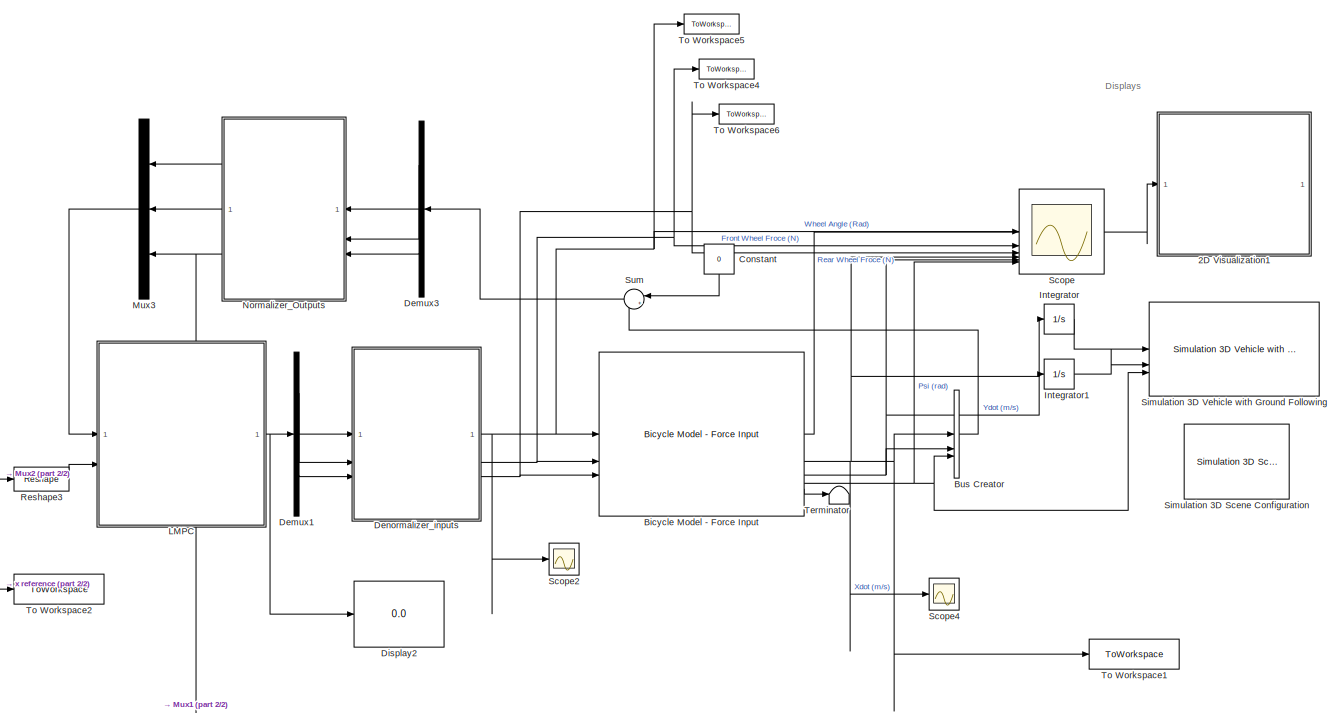
[diagram: root canvas - part 1/2, right side, full height]
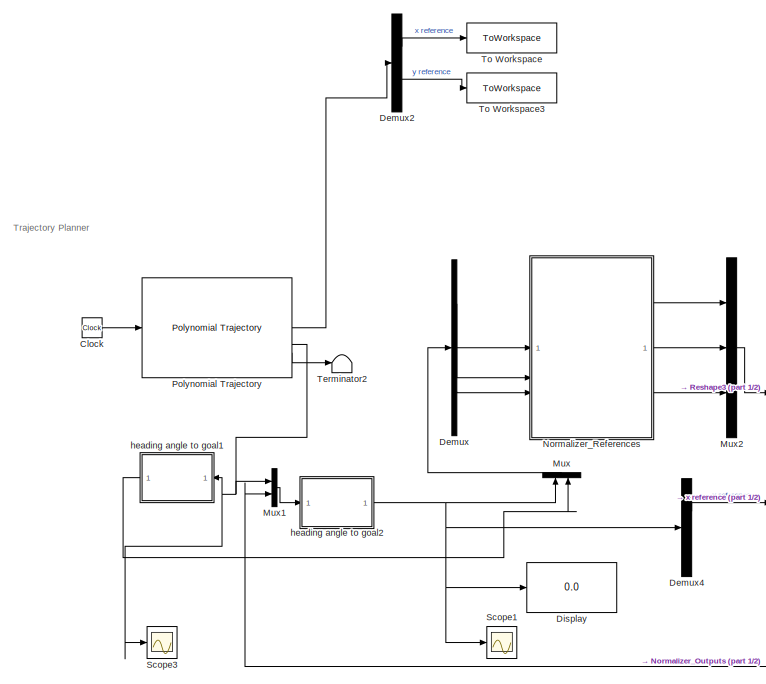
[diagram: root canvas - part 2/2, left side, full height]
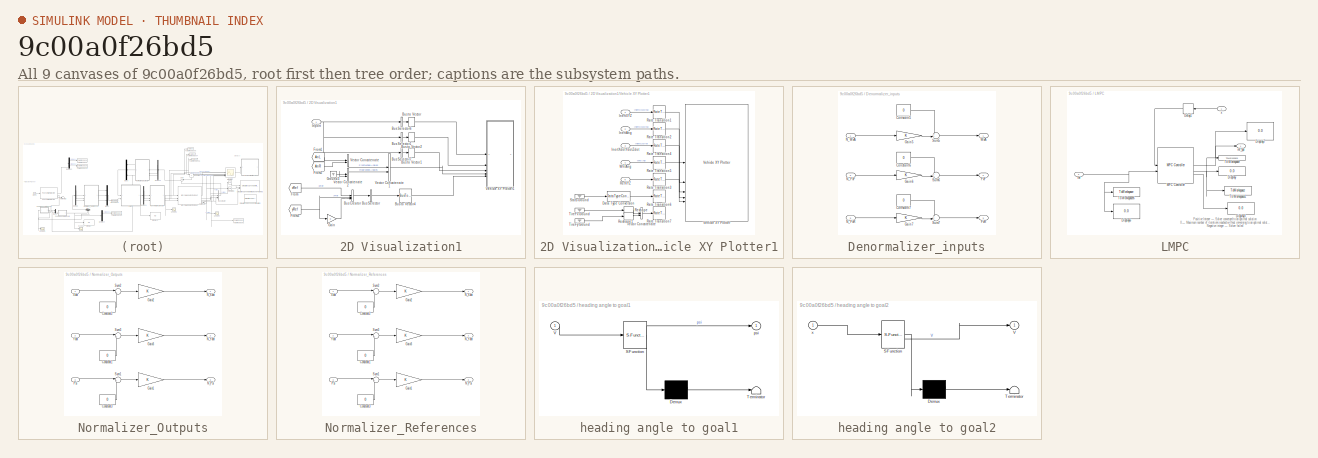
[diagram: thumbnail index - all 9 canvases of the model, root first then tree order]
MODEL slx_9c00a0f26bd5
KIND model
CONFIG AbsTol = auto
CONFIG EnableMultiTasking = off
CONFIG FixedStep = 0.01
CONFIG MaxStep = auto
CONFIG MinStep = auto
CONFIG RelTol = 1e-3
CONFIG SampleTimeConstraint = Unconstrained
CONFIG SolverName = FixedStepAuto
CONFIG StartTime = 0.0
CONFIG StopTime = 20
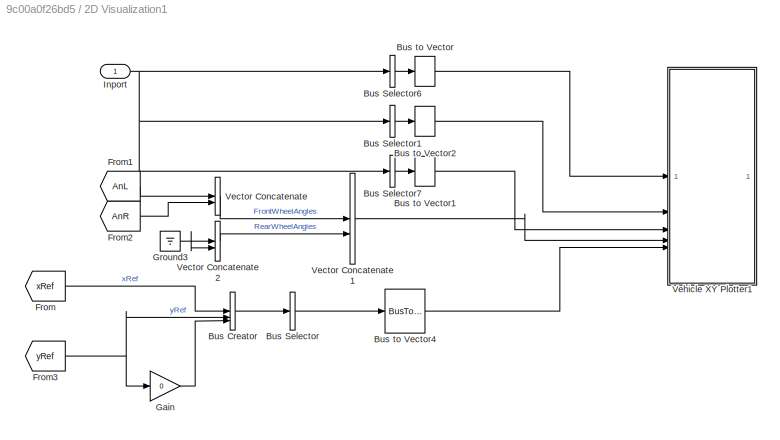
BLOCK [SubSystem] 2D Visualization1
BLOCK [BusCreator] 2D Visualization1/Bus Creator
  DisplayOption = bar
  InheritFromInputs = on
  Inputs = 3
BLOCK [BusSelector] 2D Visualization1/Bus Selector
  OutputAsBus = on
  OutputSignals = xRef,yRef,signal3
BLOCK [BusSelector] 2D Visualization1/Bus Selector1
  OutputAsBus = on
  OutputSignals = InertFrm.Cg.Ang.phi,InertFrm.Cg.Ang.theta,InertFrm.Cg.Ang.psi
BLOCK [BusSelector] 2D Visualization1/Bus Selector6
  OutputAsBus = on
  OutputSignals = InertFrm.Geom.Disp.X,InertFrm.Geom.Disp.Y,InertFrm.Geom.Disp.Z
BLOCK [BusSelector] 2D Visualization1/Bus Selector7
  OutputAsBus = on
  OutputSignals = InertFrm.Geom.Vel.Xdot,InertFrm.Geom.Vel.Ydot,InertFrm.Geom.Vel.Zdot
BLOCK [BusToVector] 2D Visualization1/Bus to Vector
BLOCK [BusToVector] 2D Visualization1/Bus to Vector1
BLOCK [BusToVector] 2D Visualization1/Bus to Vector2
BLOCK [BusToVector] 2D Visualization1/Bus to Vector4
BLOCK [From] 2D Visualization1/From
  GotoTag = xRef
BLOCK [From] 2D Visualization1/From1
  GotoTag = AnL
BLOCK [From] 2D Visualization1/From2
  GotoTag = AnR
BLOCK [From] 2D Visualization1/From3
  GotoTag = yRef
BLOCK [Gain] 2D Visualization1/Gain
  Gain = 0
BLOCK [Ground] 2D Visualization1/Ground3
BLOCK [Inport] 2D Visualization1/Inport
BLOCK [Concatenate] 2D Visualization1/Vector Concatenate
BLOCK [Concatenate] 2D Visualization1/Vector Concatenate1
BLOCK [Concatenate] 2D Visualization1/Vector Concatenate2
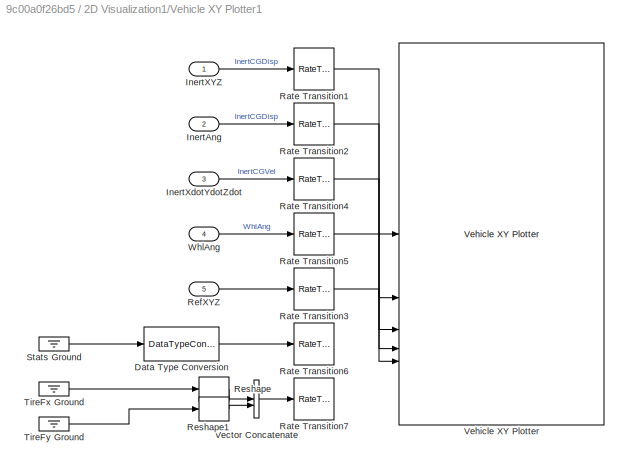
BLOCK [SubSystem] 2D Visualization1/Vehicle XY Plotter1
BLOCK [DataTypeConversion] 2D Visualization1/Vehicle XY Plotter1/Data Type Conversion
  OutDataTypeStr = double
  RndMeth = Floor
  SaturateOnIntegerOverflow = off
BLOCK [Inport] 2D Visualization1/Vehicle XY Plotter1/InertAng
  Port = 2
BLOCK [Inport] 2D Visualization1/Vehicle XY Plotter1/InertXYZ
BLOCK [Inport] 2D Visualization1/Vehicle XY Plotter1/InertXdotYdotZdot
  Port = 3
BLOCK [RateTransition] 2D Visualization1/Vehicle XY Plotter1/Rate Transition1
  Deterministic = off
  OutPortSampleTime = pltDT
BLOCK [RateTransition] 2D Visualization1/Vehicle XY Plotter1/Rate Transition2
  Deterministic = off
  OutPortSampleTime = pltDT
BLOCK [RateTransition] 2D Visualization1/Vehicle XY Plotter1/Rate Transition3
  Deterministic = off
  OutPortSampleTime = pltDT
BLOCK [RateTransition] 2D Visualization1/Vehicle XY Plotter1/Rate Transition4
  Deterministic = off
  OutPortSampleTime = pltDT
BLOCK [RateTransition] 2D Visualization1/Vehicle XY Plotter1/Rate Transition5
  Deterministic = off
  OutPortSampleTime = pltDT
BLOCK [RateTransition] 2D Visualization1/Vehicle XY Plotter1/Rate Transition6
  Deterministic = off
  OutPortSampleTime = pltDT
BLOCK [RateTransition] 2D Visualization1/Vehicle XY Plotter1/Rate Transition7
  Deterministic = off
  OutPortSampleTime = pltDT
BLOCK [Inport] 2D Visualization1/Vehicle XY Plotter1/RefXYZ
  Port = 5
BLOCK [Reshape] 2D Visualization1/Vehicle XY Plotter1/Reshape
  OutputDimensionality = Row vector (2-D)
BLOCK [Reshape] 2D Visualization1/Vehicle XY Plotter1/Reshape1
  OutputDimensionality = Row vector (2-D)
BLOCK [Ground] 2D Visualization1/Vehicle XY Plotter1/Stats Ground
BLOCK [Ground] 2D Visualization1/Vehicle XY Plotter1/TireFx Ground
BLOCK [Ground] 2D Visualization1/Vehicle XY Plotter1/TireFy Ground
BLOCK [Concatenate] 2D Visualization1/Vehicle XY Plotter1/Vector Concatenate
  Mode = Multidimensional array
BLOCK [Reference] 2D Visualization1/Vehicle XY Plotter1/Vehicle XY Plotter  REF=vehdynlibviscommon/Vehicle XY Plotter
  SourceBlock = vehdynlibviscommon/Vehicle XY Plotter
  SourceType = Vehicle XY Plotter
BLOCK [Inport] 2D Visualization1/Vehicle XY Plotter1/WhlAng
  Port = 4
BLOCK [Reference] Bicycle Model - Force Input  REF=autolibshared/Bicycle Model - Force Input
  LibrarySourceBlock = drivingscenarioandsensors/Bicycle Model - Force Input
  SourceBlock = autolibshared/Bicycle Model - Force Input
  SourceType = Vehicle Body 3DOF Lateral
BLOCK [BusCreator] Bus Creator
  DisplayOption = bar
  InheritFromInputs = on
  Inputs = 3
BLOCK [Clock] Clock
  Decimation = 19
BLOCK [Constant] Constant
  NameLocation = left
  Value = 0
BLOCK [Demux] Demux
  Outputs = 3
BLOCK [Demux] Demux1
  Outputs = 3
BLOCK [Demux] Demux2
  Outputs = 2
BLOCK [Demux] Demux3
  NameLocation = top
  Outputs = 3
BLOCK [Demux] Demux4
  Outputs = 2
BLOCK [SubSystem] Denormalizer_inputs
BLOCK [Constant] Denormalizer_inputs/Constant5
  Value = 0
BLOCK [Constant] Denormalizer_inputs/Constant6
  Value = 0
BLOCK [Constant] Denormalizer_inputs/Constant7
  Value = 0
BLOCK [Outport] Denormalizer_inputs/FxF
  Port = 2
BLOCK [Outport] Denormalizer_inputs/FxR
  Port = 3
BLOCK [Gain] Denormalizer_inputs/Gain5
BLOCK [Gain] Denormalizer_inputs/Gain6
BLOCK [Gain] Denormalizer_inputs/Gain7
BLOCK [Inport] Denormalizer_inputs/N_FxF
  Port = 2
BLOCK [Inport] Denormalizer_inputs/N_FxR
  Port = 3
BLOCK [Inport] Denormalizer_inputs/N_WxA
BLOCK [Sum] Denormalizer_inputs/Sum5
  Inputs = ++|
BLOCK [Sum] Denormalizer_inputs/Sum6
  Inputs = ++|
BLOCK [Sum] Denormalizer_inputs/Sum7
  Inputs = ++|
BLOCK [Outport] Denormalizer_inputs/WxA
BLOCK [Display] Display
  Decimation = 1
BLOCK [Display] Display2
  Decimation = 1
BLOCK [Integrator] Integrator
BLOCK [Integrator] Integrator1
BLOCK [SubSystem] LMPC
BLOCK [Delay] LMPC/Delay1
  DelayLength = 1
  InitialCondition = 0
  InputPortMap = u0
  NameLocation = top
BLOCK [Display] LMPC/Display
  Decimation = 1
BLOCK [Display] LMPC/Display3
  Decimation = 1
BLOCK [Display] LMPC/Display6
  Decimation = 1
BLOCK [Display] LMPC/Display7
  Decimation = 1
BLOCK [Reference] LMPC/MPC Controller  REF=mpclib/MPC Controller  (lib defined in mdl_ae329e0e0455)
  SCDEnableBlockLinearizationSpecification = on
  SourceBlock = mpclib/MPC Controller
  SourceType = MPC
BLOCK [ToWorkspace] LMPC/To Workspace
  FixptAsFi = on
  MaxDataPoints = inf
  SampleTime = -1
  SaveFormat = Timeseries
  VariableName = mpcout_cost
BLOCK [ToWorkspace] LMPC/To Workspace1
  FixptAsFi = on
  MaxDataPoints = inf
  SampleTime = -1
  SaveFormat = Timeseries
  VariableName = cost
BLOCK [ToWorkspace] LMPC/To Workspace6
  FixptAsFi = on
  MaxDataPoints = inf
  SampleTime = -1
  SaveFormat = Timeseries
  VariableName = ref
BLOCK [Outport] LMPC/mf_opt
BLOCK [Inport] LMPC/ref
  Port = 2
BLOCK [Inport] LMPC/x
BLOCK [Mux] Mux
  DisplayOption = bar
  Inputs = 2
  NameLocation = right
BLOCK [Mux] Mux1
  DisplayOption = bar
  Inputs = 2
BLOCK [Mux] Mux2
  DisplayOption = bar
  Inputs = 3
BLOCK [Mux] Mux3
  DisplayOption = bar
  Inputs = 3
  NameLocation = top
BLOCK [SubSystem] Normalizer_Outputs
  NameLocation = top
BLOCK [Constant] Normalizer_Outputs/Constant1
  Value = 0
BLOCK [Constant] Normalizer_Outputs/Constant2
  Value = 0
BLOCK [Constant] Normalizer_Outputs/Constant3
  Value = 0
BLOCK [Gain] Normalizer_Outputs/Gain1
BLOCK [Gain] Normalizer_Outputs/Gain2
BLOCK [Gain] Normalizer_Outputs/Gain3
BLOCK [Outport] Normalizer_Outputs/N_Psi
  Port = 3
BLOCK [Outport] Normalizer_Outputs/N_Xdot
BLOCK [Outport] Normalizer_Outputs/N_Ydot
  Port = 2
BLOCK [Inport] Normalizer_Outputs/Psi
  Port = 3
BLOCK [Sum] Normalizer_Outputs/Sum1
  Inputs = |+-
BLOCK [Sum] Normalizer_Outputs/Sum2
  Inputs = |+-
BLOCK [Sum] Normalizer_Outputs/Sum3
  Inputs = |+-
BLOCK [Inport] Normalizer_Outputs/Xdot
BLOCK [Inport] Normalizer_Outputs/Ydot
  Port = 2
BLOCK [SubSystem] Normalizer_References
BLOCK [Constant] Normalizer_References/Constant1
  Value = 0
BLOCK [Constant] Normalizer_References/Constant2
  Value = 0
BLOCK [Constant] Normalizer_References/Constant3
  Value = 0
BLOCK [Gain] Normalizer_References/Gain1
BLOCK [Gain] Normalizer_References/Gain2
BLOCK [Gain] Normalizer_References/Gain3
BLOCK [Outport] Normalizer_References/N_Psi
  Port = 3
BLOCK [Outport] Normalizer_References/N_Xdot
BLOCK [Outport] Normalizer_References/N_Ydot
  Port = 2
BLOCK [Inport] Normalizer_References/Psi
  Port = 3
BLOCK [Sum] Normalizer_References/Sum1
  Inputs = |+-
BLOCK [Sum] Normalizer_References/Sum2
  Inputs = |+-
BLOCK [Sum] Normalizer_References/Sum3
  Inputs = |+-
BLOCK [Inport] Normalizer_References/Xdot
BLOCK [Inport] Normalizer_References/Ydot
  Port = 2
BLOCK [Reference] Polynomial Trajectory  REF=robotcorelib/Polynomial Trajectory
  SourceBlock = robotcorelib/Polynomial Trajectory
  SourceType = robotics.slcore.internal.block.PolyTrajSys
BLOCK [Reshape] Reshape3
  OutputDimensionality = Customize
  OutputDimensions = [1,3]
BLOCK [Scope] Scope
  Floating = off
  NumInputPorts = 6
  ScopeSpecificationString = Simulink.scopes.TimeScopeBlockCfg('CurrentConfiguration', extmgr.ConfigurationSet(extmgr.Configuration('Core','General UI',true,'FigureColor',[1 1 1],'DisplayFullSourceName',true),extmgr.Configuration('Core','Source UI',true),extmgr.Configuration('Sources','WiredSimulink',true),extmgr.Configuration('Visuals','Time Domain',true,'SerializedDisplays',{struct('MinYLimReal','-0.00053','MaxYLimReal','0....<+5860ch>
BLOCK [Scope] Scope1
  Floating = off
  NumInputPorts = 1
  ScopeSpecificationString = Simulink.scopes.TimeScopeBlockCfg('CurrentConfiguration', extmgr.ConfigurationSet(extmgr.Configuration('Core','General UI',true),extmgr.Configuration('Core','Source UI',true),extmgr.Configuration('Sources','WiredSimulink',true,'DataLoggingVariableName','ScopeData1'),extmgr.Configuration('Visuals','Time Domain',true,'SerializedDisplays',{struct('MinYLimReal','-0.09375','MaxYLimReal','0.84375','YLab...<+1465ch>
BLOCK [Scope] Scope2
  Floating = off
  NumInputPorts = 1
  ScopeSpecificationString = Simulink.scopes.TimeScopeBlockCfg('CurrentConfiguration', extmgr.ConfigurationSet(extmgr.Configuration('Core','General UI',true),extmgr.Configuration('Core','Source UI',true),extmgr.Configuration('Sources','WiredSimulink',true,'DataLoggingVariableName','ScopeData2'),extmgr.Configuration('Visuals','Time Domain',true,'SerializedDisplays',{struct('MinYLimReal','-1.00000','MaxYLimReal','1.00000','YLab...<+1431ch>
BLOCK [Scope] Scope3
  Floating = off
  NumInputPorts = 1
  ScopeSpecificationString = Simulink.scopes.TimeScopeBlockCfg('CurrentConfiguration', extmgr.ConfigurationSet(extmgr.Configuration('Core','General UI',true),extmgr.Configuration('Core','Source UI',true),extmgr.Configuration('Sources','WiredSimulink',true,'DataLoggingVariableName','ScopeData1'),extmgr.Configuration('Visuals','Time Domain',true,'SerializedDisplays',{struct('MinYLimReal','-0.09375','MaxYLimReal','0.84375','YLab...<+1467ch>
BLOCK [Scope] Scope4
  Floating = off
  NumInputPorts = 1
  ScopeSpecificationString = Simulink.scopes.TimeScopeBlockCfg('CurrentConfiguration', extmgr.ConfigurationSet(extmgr.Configuration('Core','General UI',true),extmgr.Configuration('Core','Source UI',true),extmgr.Configuration('Sources','WiredSimulink',true,'DataLoggingVariableName','ScopeData2'),extmgr.Configuration('Visuals','Time Domain',true,'SerializedDisplays',{struct('MinYLimReal','-0.125','MaxYLimReal','0.58548','YLabel...<+1420ch>
BLOCK [Reference] Simulation 3D Scene Configuration  REF=sim3dlib/Simulation 3D Scene Configuration
  Priority = 0
  SourceBlock = sim3dlib/Simulation 3D Scene Configuration
  SourceType = Simulation 3D Scene Configuration
BLOCK [Reference] Simulation 3D Vehicle with Ground Following  REF=sim3dautolib/Simulation 3D Vehicle with Ground Following VDBS
  LibrarySourceBlock = vehdynlibsim3d/Simulation 3D Vehicle with Ground Following
  Priority = -1
  SourceBlock = sim3dautolib/Simulation 3D Vehicle with Ground Following VDBS
  SourceType = Simulation 3D Vehicle with Ground Following
BLOCK [Sum] Sum
  Inputs = |++
  NameLocation = top
BLOCK [Terminator] Terminator
BLOCK [Terminator] Terminator2
BLOCK [ToWorkspace] To Workspace
  FixptAsFi = on
  MaxDataPoints = inf
  SampleTime = -1
  Save2DSignal = 2-D array (concatenate along first dimension)
  VariableName = Xref
BLOCK [ToWorkspace] To Workspace1
  FixptAsFi = on
  MaxDataPoints = inf
  SampleTime = -1
  SaveFormat = Timeseries
  VariableName = Xdot2
BLOCK [ToWorkspace] To Workspace2
  FixptAsFi = on
  MaxDataPoints = inf
  SampleTime = -1
  SaveFormat = Timeseries
  VariableName = Xdot
BLOCK [ToWorkspace] To Workspace3
  FixptAsFi = on
  MaxDataPoints = inf
  SampleTime = -1
  Save2DSignal = 2-D array (concatenate along first dimension)
  VariableName = Yref
BLOCK [ToWorkspace] To Workspace4
  FixptAsFi = on
  MaxDataPoints = inf
  SampleTime = 0.1
  SaveFormat = Timeseries
  VariableName = FxF
BLOCK [ToWorkspace] To Workspace5
  FixptAsFi = on
  MaxDataPoints = inf
  SampleTime = 0.1
  SaveFormat = Timeseries
  VariableName = WhlAngF
BLOCK [ToWorkspace] To Workspace6
  FixptAsFi = on
  MaxDataPoints = inf
  SampleTime = 0.1
  SaveFormat = Timeseries
  VariableName = FxR
BLOCK [SubSystem] heading angle to goal1
  ErrorFcn = Stateflow.Translate.translate
  NameLocation = top
  PermitHierarchicalResolution = ExplicitOnly
  SFBlockType = MATLAB Function
  TreatAsAtomicUnit = on
BLOCK [Demux] heading angle to goal1/ Demux 
  Outputs = 1
BLOCK [S-Function] heading angle to goal1/ SFunction 
  EnableBusSupport = on
  FunctionName = sf_sfun
  PortCounts = [1 2]
  SFcnIsStateOwnerBlock = off
  SFunctionDeploymentMode = off
  Tag = Stateflow S-Function 2
BLOCK [Terminator] heading angle to goal1/ Terminator 
BLOCK [Inport] heading angle to goal1/V
BLOCK [Outport] heading angle to goal1/psi
BLOCK [SubSystem] heading angle to goal2
  ErrorFcn = Stateflow.Translate.translate
  PermitHierarchicalResolution = ExplicitOnly
  SFBlockType = MATLAB Function
  TreatAsAtomicUnit = on
BLOCK [Demux] heading angle to goal2/ Demux 
  Outputs = 1
BLOCK [S-Function] heading angle to goal2/ SFunction 
  EnableBusSupport = on
  FunctionName = sf_sfun
  PortCounts = [1 2]
  SFcnIsStateOwnerBlock = off
  SFunctionDeploymentMode = off
  Tag = Stateflow S-Function 3
BLOCK [Terminator] heading angle to goal2/ Terminator 
BLOCK [Outport] heading angle to goal2/V
BLOCK [Inport] heading angle to goal2/x
ANNOTATION (root): Displays
ANNOTATION (root): Trajectory Planner
ANNOTATION LMPC: Positive Integer — Solver converged to an optimal solution 0 — Maximum number of iterations reached without converging to an optimal solution Negative integer — Solver failed
LINE 2D Visualization1/Bus Creator:1 -> 2D Visualization1/Bus Selector:1
LINE 2D Visualization1/Bus Selector1:1 -> 2D Visualization1/Bus to Vector2:1
LINE 2D Visualization1/Bus Selector6:1 -> 2D Visualization1/Bus to Vector:1
LINE 2D Visualization1/Bus Selector7:1 -> 2D Visualization1/Bus to Vector1:1
LINE 2D Visualization1/Bus Selector:1 -> 2D Visualization1/Bus to Vector4:1
LINE 2D Visualization1/Bus to Vector1:1 -> 2D Visualization1/Vehicle XY Plotter1:3
LINE 2D Visualization1/Bus to Vector2:1 -> 2D Visualization1/Vehicle XY Plotter1:2
LINE 2D Visualization1/Bus to Vector4:1 -> 2D Visualization1/Vehicle XY Plotter1:5
LINE 2D Visualization1/Bus to Vector:1 -> 2D Visualization1/Vehicle XY Plotter1:1
LINE 2D Visualization1/From1:1 -> 2D Visualization1/Vector Concatenate:1
LINE 2D Visualization1/From2:1 -> 2D Visualization1/Vector Concatenate:2
NET 2D Visualization1/From3:1 -> 2D Visualization1/Bus Creator:2, 2D Visualization1/Gain:1
LINE 2D Visualization1/From:1 -> 2D Visualization1/Bus Creator:1
LINE 2D Visualization1/Gain:1 -> 2D Visualization1/Bus Creator:3
NET 2D Visualization1/Ground3:1 -> 2D Visualization1/Vector Concatenate2:1, 2D Visualization1/Vector Concatenate2:2
NET 2D Visualization1/Inport:1 -> 2D Visualization1/Bus Selector1:1, 2D Visualization1/Bus Selector6:1, 2D Visualization1/Bus Selector7:1
LINE 2D Visualization1/Vector Concatenate1:1 -> 2D Visualization1/Vehicle XY Plotter1:4
LINE 2D Visualization1/Vector Concatenate2:1 -> 2D Visualization1/Vector Concatenate1:2
LINE 2D Visualization1/Vector Concatenate:1 -> 2D Visualization1/Vector Concatenate1:1
LINE 2D Visualization1/Vehicle XY Plotter1/Data Type Conversion:1 -> 2D Visualization1/Vehicle XY Plotter1/Rate Transition6:1
LINE 2D Visualization1/Vehicle XY Plotter1/InertAng:1 -> 2D Visualization1/Vehicle XY Plotter1/Rate Transition2:1
LINE 2D Visualization1/Vehicle XY Plotter1/InertXYZ:1 -> 2D Visualization1/Vehicle XY Plotter1/Rate Transition1:1
LINE 2D Visualization1/Vehicle XY Plotter1/InertXdotYdotZdot:1 -> 2D Visualization1/Vehicle XY Plotter1/Rate Transition4:1
LINE 2D Visualization1/Vehicle XY Plotter1/Rate Transition1:1 -> 2D Visualization1/Vehicle XY Plotter1/Vehicle XY Plotter:1
LINE 2D Visualization1/Vehicle XY Plotter1/Rate Transition2:1 -> 2D Visualization1/Vehicle XY Plotter1/Vehicle XY Plotter:2
LINE 2D Visualization1/Vehicle XY Plotter1/Rate Transition3:1 -> 2D Visualization1/Vehicle XY Plotter1/Vehicle XY Plotter:5
LINE 2D Visualization1/Vehicle XY Plotter1/Rate Transition4:1 -> 2D Visualization1/Vehicle XY Plotter1/Vehicle XY Plotter:3
LINE 2D Visualization1/Vehicle XY Plotter1/Rate Transition5:1 -> 2D Visualization1/Vehicle XY Plotter1/Vehicle XY Plotter:4
LINE 2D Visualization1/Vehicle XY Plotter1/RefXYZ:1 -> 2D Visualization1/Vehicle XY Plotter1/Rate Transition3:1
LINE 2D Visualization1/Vehicle XY Plotter1/Reshape1:1 -> 2D Visualization1/Vehicle XY Plotter1/Vector Concatenate:2
LINE 2D Visualization1/Vehicle XY Plotter1/Reshape:1 -> 2D Visualization1/Vehicle XY Plotter1/Vector Concatenate:1
LINE 2D Visualization1/Vehicle XY Plotter1/Stats Ground:1 -> 2D Visualization1/Vehicle XY Plotter1/Data Type Conversion:1
LINE 2D Visualization1/Vehicle XY Plotter1/TireFx Ground:1 -> 2D Visualization1/Vehicle XY Plotter1/Reshape:1
LINE 2D Visualization1/Vehicle XY Plotter1/TireFy Ground:1 -> 2D Visualization1/Vehicle XY Plotter1/Reshape1:1
LINE 2D Visualization1/Vehicle XY Plotter1/Vector Concatenate:1 -> 2D Visualization1/Vehicle XY Plotter1/Rate Transition7:1
LINE 2D Visualization1/Vehicle XY Plotter1/WhlAng:1 -> 2D Visualization1/Vehicle XY Plotter1/Rate Transition5:1
LINE Bicycle Model - Force Input:1 -> 2D Visualization1:1
NET Bicycle Model - Force Input:2 -> Bus Creator:1, Integrator:1, Scope4:1, Scope:4, To Workspace1:1
NET Bicycle Model - Force Input:3 -> Bus Creator:2, Integrator1:1, Scope:5
NET Bicycle Model - Force Input:4 -> Bus Creator:3, Scope:6, Simulation 3D Vehicle with Ground Following:3
LINE Bicycle Model - Force Input:5 -> Terminator:1
LINE Bus Creator:1 -> Sum:2
LINE Clock:1 -> Polynomial Trajectory:1
LINE Constant:1 -> Sum:1
LINE Demux1:1 -> Denormalizer_inputs:1
LINE Demux1:2 -> Denormalizer_inputs:2
LINE Demux1:3 -> Denormalizer_inputs:3
LINE Demux2:1 -> To Workspace:1
LINE Demux2:2 -> To Workspace3:1
LINE Demux3:1 -> Normalizer_Outputs:1
LINE Demux3:2 -> Normalizer_Outputs:2
LINE Demux3:3 -> Normalizer_Outputs:3
LINE Demux4:1 -> To Workspace2:1
LINE Demux:1 -> Normalizer_References:1
LINE Demux:2 -> Normalizer_References:2
LINE Demux:3 -> Normalizer_References:3
LINE Denormalizer_inputs/Constant5:1 -> Denormalizer_inputs/Sum5:1
LINE Denormalizer_inputs/Constant6:1 -> Denormalizer_inputs/Sum6:1
LINE Denormalizer_inputs/Constant7:1 -> Denormalizer_inputs/Sum7:1
LINE Denormalizer_inputs/Gain5:1 -> Denormalizer_inputs/Sum5:2
LINE Denormalizer_inputs/Gain6:1 -> Denormalizer_inputs/Sum6:2
LINE Denormalizer_inputs/Gain7:1 -> Denormalizer_inputs/Sum7:2
LINE Denormalizer_inputs/N_FxF:1 -> Denormalizer_inputs/Gain6:1
LINE Denormalizer_inputs/N_FxR:1 -> Denormalizer_inputs/Gain7:1
LINE Denormalizer_inputs/N_WxA:1 -> Denormalizer_inputs/Gain5:1
LINE Denormalizer_inputs/Sum5:1 -> Denormalizer_inputs/WxA:1
LINE Denormalizer_inputs/Sum6:1 -> Denormalizer_inputs/FxF:1
LINE Denormalizer_inputs/Sum7:1 -> Denormalizer_inputs/FxR:1
NET Denormalizer_inputs:1 -> Bicycle Model - Force Input:1, Scope2:1, Scope:1, To Workspace5:1
NET Denormalizer_inputs:2 -> Bicycle Model - Force Input:2, Scope:2, To Workspace4:1
NET Denormalizer_inputs:3 -> Bicycle Model - Force Input:3, Scope:3, To Workspace6:1
LINE Integrator1:1 -> Simulation 3D Vehicle with Ground Following:2
LINE Integrator:1 -> Simulation 3D Vehicle with Ground Following:1
LINE LMPC/Delay1:1 -> LMPC/MPC Controller:1
NET LMPC/MPC Controller:1 -> LMPC/Display7:1, LMPC/mf_opt:1
NET LMPC/MPC Controller:2 -> LMPC/Display:1, LMPC/To Workspace1:1, LMPC/To Workspace:1
LINE LMPC/MPC Controller:3 -> LMPC/Display3:1
NET LMPC/ref:1 -> LMPC/Display6:1, LMPC/MPC Controller:2, LMPC/To Workspace6:1
LINE LMPC/x:1 -> LMPC/Delay1:1
NET LMPC:1 -> Demux1:1, Display2:1
LINE Mux1:1 -> heading angle to goal2:1
LINE Mux2:1 -> Reshape3:1
LINE Mux3:1 -> LMPC:1
LINE Mux:1 -> Demux:1
LINE Normalizer_Outputs/Constant1:1 -> Normalizer_Outputs/Sum3:2
LINE Normalizer_Outputs/Constant2:1 -> Normalizer_Outputs/Sum2:2
LINE Normalizer_Outputs/Constant3:1 -> Normalizer_Outputs/Sum1:2
LINE Normalizer_Outputs/Gain1:1 -> Normalizer_Outputs/N_Psi:1
LINE Normalizer_Outputs/Gain2:1 -> Normalizer_Outputs/N_Xdot:1
LINE Normalizer_Outputs/Gain3:1 -> Normalizer_Outputs/N_Ydot:1
LINE Normalizer_Outputs/Psi:1 -> Normalizer_Outputs/Sum1:1
LINE Normalizer_Outputs/Sum1:1 -> Normalizer_Outputs/Gain1:1
LINE Normalizer_Outputs/Sum2:1 -> Normalizer_Outputs/Gain2:1
LINE Normalizer_Outputs/Sum3:1 -> Normalizer_Outputs/Gain3:1
LINE Normalizer_Outputs/Xdot:1 -> Normalizer_Outputs/Sum2:1
LINE Normalizer_Outputs/Ydot:1 -> Normalizer_Outputs/Sum3:1
LINE Normalizer_Outputs:1 -> Mux3:1
LINE Normalizer_Outputs:2 -> Mux3:2
NET Normalizer_Outputs:3 -> Mux1:2, Mux3:3
LINE Normalizer_References/Constant1:1 -> Normalizer_References/Sum3:2
LINE Normalizer_References/Constant2:1 -> Normalizer_References/Sum2:2
LINE Normalizer_References/Constant3:1 -> Normalizer_References/Sum1:2
LINE Normalizer_References/Gain1:1 -> Normalizer_References/N_Psi:1
LINE Normalizer_References/Gain2:1 -> Normalizer_References/N_Xdot:1
LINE Normalizer_References/Gain3:1 -> Normalizer_References/N_Ydot:1
LINE Normalizer_References/Psi:1 -> Normalizer_References/Sum1:1
LINE Normalizer_References/Sum1:1 -> Normalizer_References/Gain1:1
LINE Normalizer_References/Sum2:1 -> Normalizer_References/Gain2:1
LINE Normalizer_References/Sum3:1 -> Normalizer_References/Gain3:1
LINE Normalizer_References/Xdot:1 -> Normalizer_References/Sum2:1
LINE Normalizer_References/Ydot:1 -> Normalizer_References/Sum3:1
LINE Normalizer_References:1 -> Mux2:1
LINE Normalizer_References:2 -> Mux2:2
LINE Normalizer_References:3 -> Mux2:3
LINE Polynomial Trajectory:1 -> Demux2:1
NET Polynomial Trajectory:2 -> Mux1:1, Scope3:1, heading angle to goal1:1
LINE Polynomial Trajectory:3 -> Terminator2:1
LINE Reshape3:1 -> LMPC:2
LINE Sum:1 -> Demux3:1
LINE heading angle to goal1:1 -> Mux:2
NET heading angle to goal2:1 -> Demux4:1, Display:1, Mux:1, Scope1:1
note: NET lines group one-source signal fan-out (src -> all destinations, sorted); 1:1 wires keep LINE
CHART heading angle to goal2 states=1 transitions=1
  STATE_LABEL 'eML_blk_kernel()'
  STATE_LABEL 'SCRIPT:\nfunction V = fcn(x)\n\n\nV = [cos(x(3)) sin(x(3));\n    -sin(x(3)) cos(x(3))]*[x(1); x(2)];'
CHART heading angle to goal1 states=1 transitions=1
  STATE_LABEL 'eML_blk_kernel()'
  STATE_LABEL 'SCRIPT:\nfunction psi = fcn(V)\n\nv1 =V(1);\nv2 =V(2);\npsi = atan2(v2,v1);\n'
CHART  states=0 transitions=0
CHART  states=0 transitions=0
